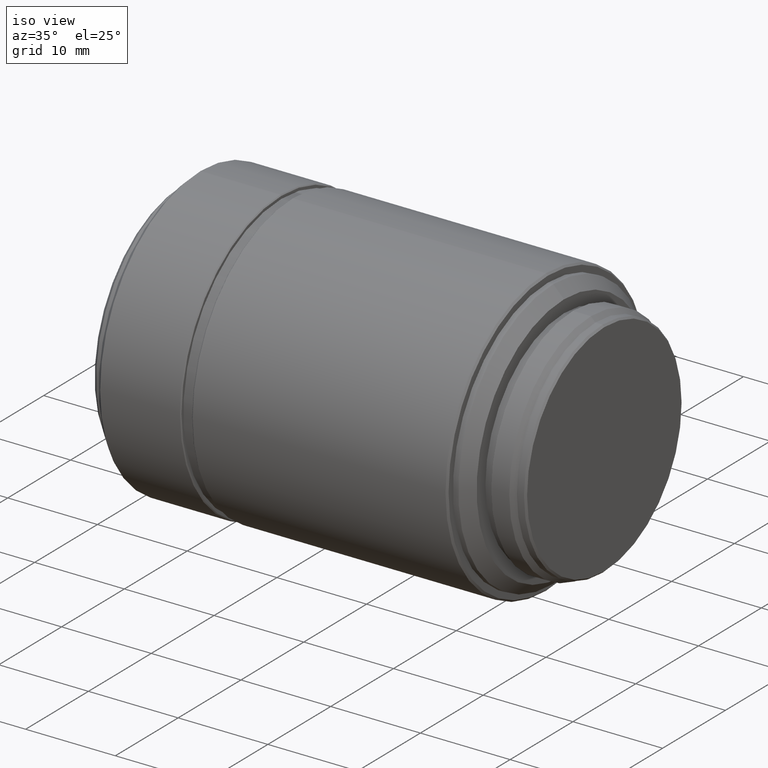
[diagram: clean part render]
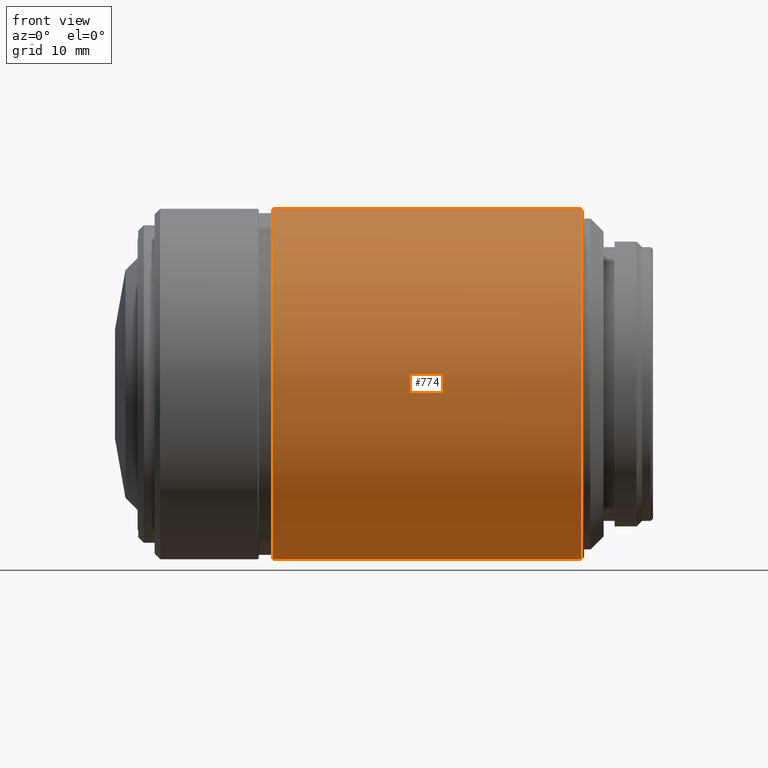
[diagram: tour spotlight — one face highlighted and labeled with its STEP entity id]
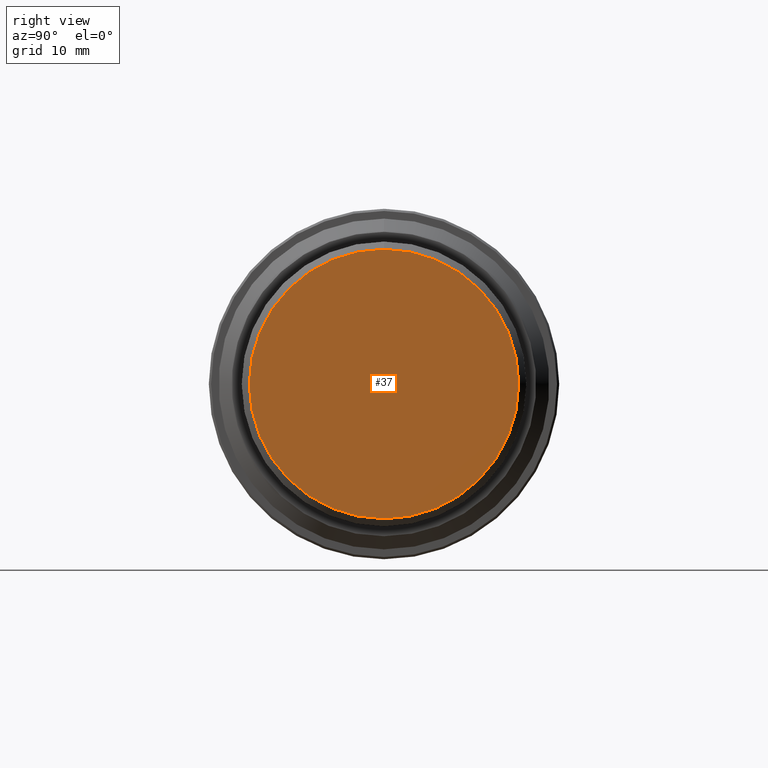
[diagram: tour spotlight — one face highlighted and labeled with its STEP entity id]
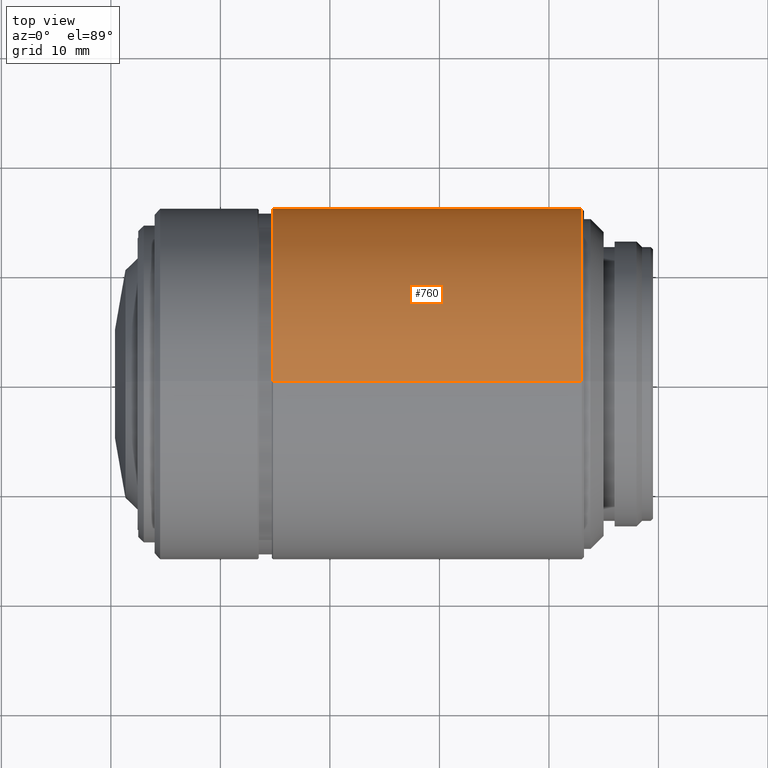
[diagram: tour spotlight — one face highlighted and labeled with its STEP entity id]
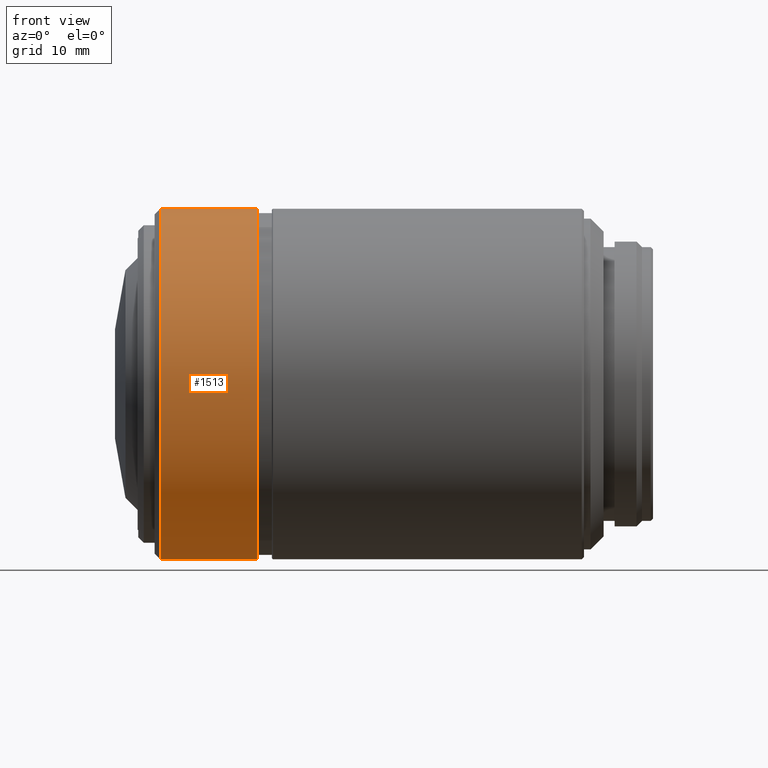
[diagram: tour spotlight — one face highlighted and labeled with its STEP entity id]
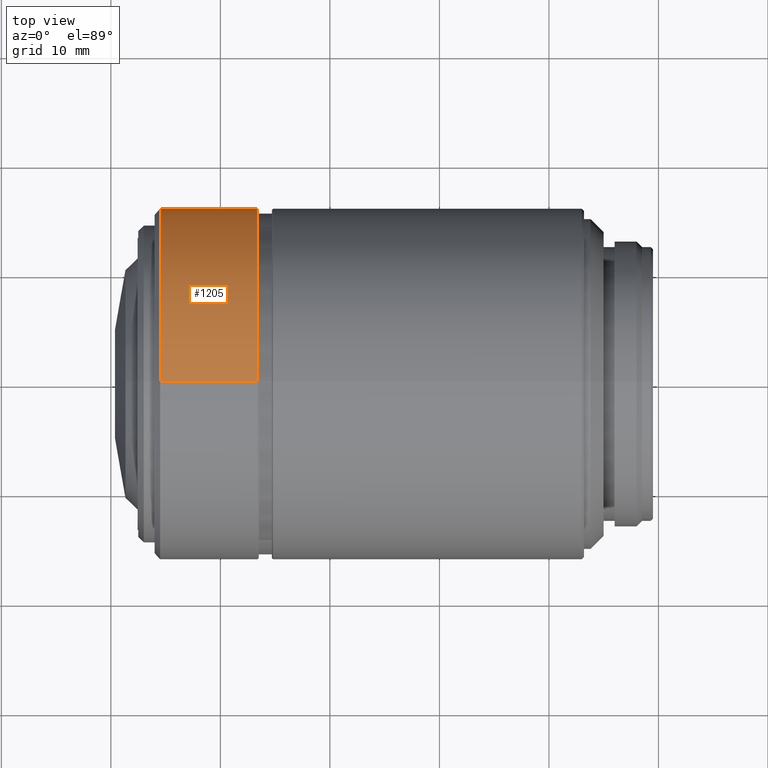
[diagram: tour spotlight — one face highlighted and labeled with its STEP entity id]
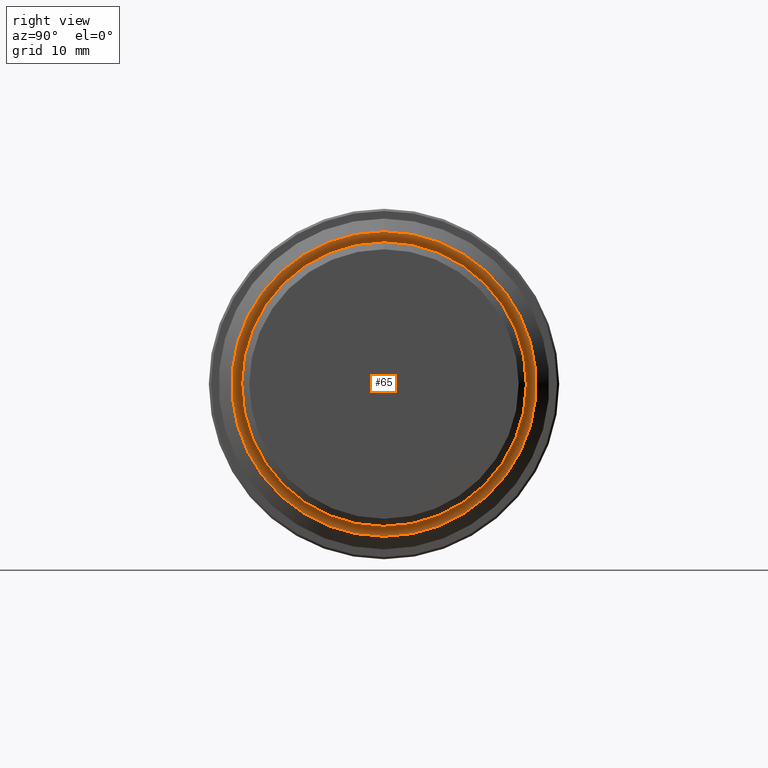
[diagram: tour spotlight — one face highlighted and labeled with its STEP entity id]
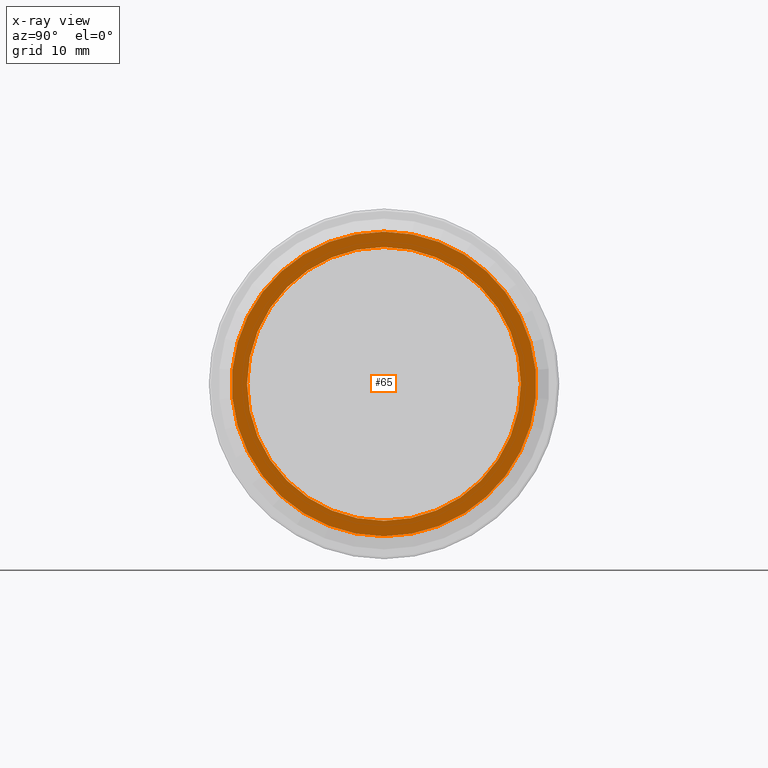
[diagram: x-ray of the same camera — body ghosted, this tour face saturated]
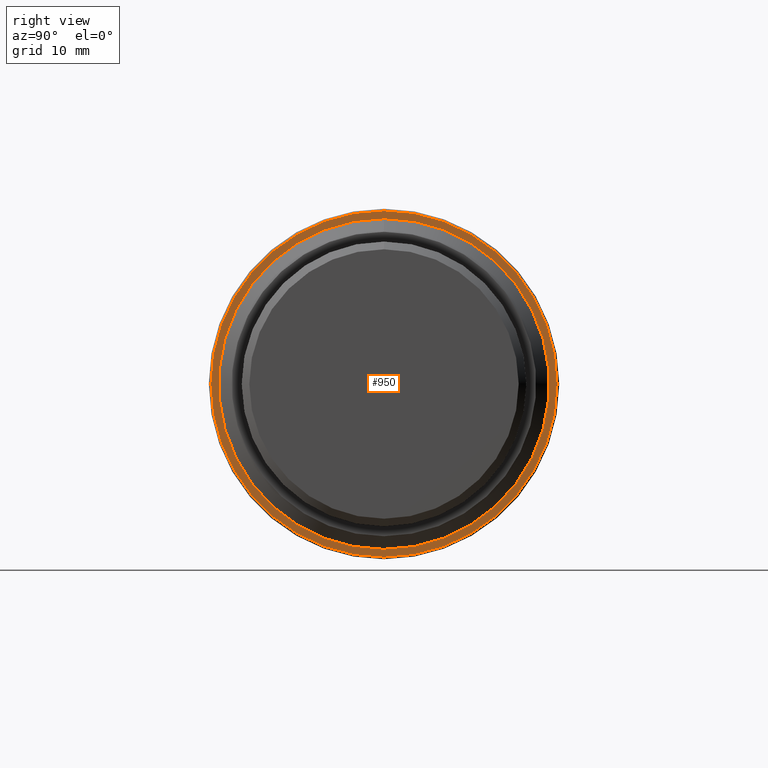
[diagram: tour spotlight — one face highlighted and labeled with its STEP entity id]
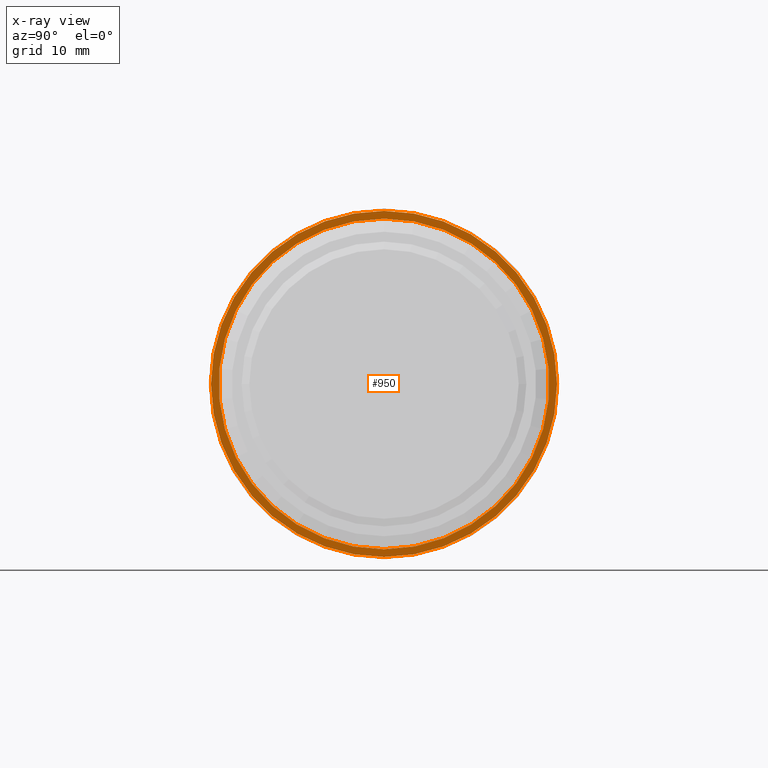
[diagram: x-ray of the same camera — body ghosted, this tour face saturated]
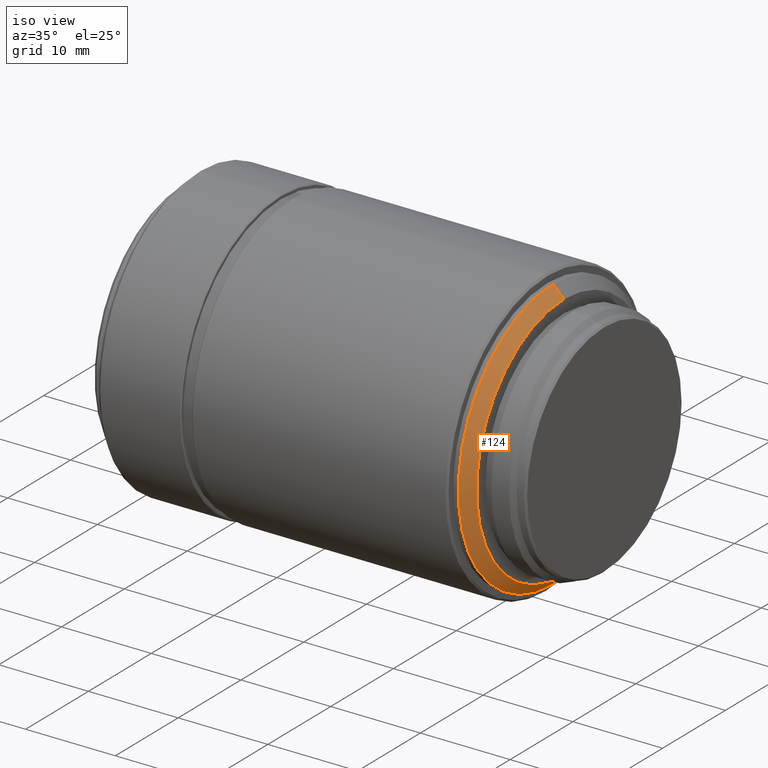
[diagram: tour spotlight — one face highlighted and labeled with its STEP entity id]
A machine part: a face-by-face anatomy tour. The part has 48 B-rep faces; the first image is the clean iso view, then the 8 largest visible faces are spotlighted one at a time (largest first), each with its STEP entity span.

Face 1 — front view, entity #774. In plain terms, the highlighted cylindrical surface (partial cylindrical patch) has radius 16 mm, axis along (1, 0, 0).
Definition (entity closure, byte-faithful):
#27 = CARTESIAN_POINT ( 'NONE',  ( 28.87349364412800057, 0.000000000000000000, 0.000000000000000000 ) ) ;
#83 = LINE ( 'NONE', #583, #866 ) ;
#102 = CARTESIAN_POINT ( 'NONE',  ( 42.97349364412800554, -16.00000000000000000, -1.959434878635769865E-15 ) ) ;
#168 = EDGE_CURVE ( 'NONE', #1277, #1453, #83, .T. ) ;
#226 = EDGE_LOOP ( 'NONE', ( #393, #570, #949, #1210 ) ) ;
#227 = EDGE_CURVE ( 'NONE', #1031, #1277, #814, .T. ) ;
#242 = CARTESIAN_POINT ( 'NONE',  ( 42.97349364412800554, 0.000000000000000000, 0.000000000000000000 ) ) ;
#355 = CIRCLE ( 'NONE', #1140, 16.00000000000000000 ) ;
#378 = CARTESIAN_POINT ( 'NONE',  ( 14.77349364412799915, 16.00000000000000000, -1.959434878635769865E-15 ) ) ;
#384 = DIRECTION ( 'NONE',  ( 0.000000000000000000, -1.000000000000000000, 0.000000000000000000 ) ) ;
#391 = DIRECTION ( 'NONE',  ( 1.000000000000000000, 0.000000000000000000, 0.000000000000000000 ) ) ;
#393 = ORIENTED_EDGE ( 'NONE', *, *, #518, .F. ) ;
#457 = DIRECTION ( 'NONE',  ( 1.000000000000000000, 0.000000000000000000, 0.000000000000000000 ) ) ;
#497 = DIRECTION ( 'NONE',  ( 1.000000000000000000, 0.000000000000000000, 0.000000000000000000 ) ) ;
#518 = EDGE_CURVE ( 'NONE', #992, #1453, #355, .T. ) ;
#570 = ORIENTED_EDGE ( 'NONE', *, *, #842, .F. ) ;
#583 = CARTESIAN_POINT ( 'NONE',  ( 28.87349364412800057, 16.00000000000000000, -1.959434878635769865E-15 ) ) ;
#608 = FACE_OUTER_BOUND ( 'NONE', #226, .T. ) ;
#664 = AXIS2_PLACEMENT_3D ( 'NONE', #27, #497, #384 ) ;
#774 = ADVANCED_FACE ( 'NONE', ( #608 ), #1106, .T. ) ;
#786 = DIRECTION ( 'NONE',  ( 0.000000000000000000, 1.000000000000000000, 0.000000000000000000 ) ) ;
#814 = CIRCLE ( 'NONE', #961, 16.00000000000000000 ) ;
#822 = DIRECTION ( 'NONE',  ( 0.000000000000000000, 1.000000000000000000, 0.000000000000000000 ) ) ;
#842 = EDGE_CURVE ( 'NONE', #1031, #992, #900, .T. ) ;
#866 = VECTOR ( 'NONE', #1066, 1000.000000000000000 ) ;
#900 = LINE ( 'NONE', #929, #1524 ) ;
#929 = CARTESIAN_POINT ( 'NONE',  ( 28.87349364412800057, -16.00000000000000000, 0.000000000000000000 ) ) ;
#949 = ORIENTED_EDGE ( 'NONE', *, *, #227, .T. ) ;
#961 = AXIS2_PLACEMENT_3D ( 'NONE', #1002, #391, #786 ) ;
#973 = CARTESIAN_POINT ( 'NONE',  ( 42.97349364412800554, 16.00000000000000000, 0.000000000000000000 ) ) ;
#992 = VERTEX_POINT ( 'NONE', #102 ) ;
#1002 = CARTESIAN_POINT ( 'NONE',  ( 14.77349364412799915, 0.000000000000000000, 0.000000000000000000 ) ) ;
#1031 = VERTEX_POINT ( 'NONE', #1083 ) ;
#1066 = DIRECTION ( 'NONE',  ( 1.000000000000000000, 0.000000000000000000, 0.000000000000000000 ) ) ;
#1083 = CARTESIAN_POINT ( 'NONE',  ( 14.77349364412799915, -16.00000000000000000, 0.000000000000000000 ) ) ;
#1106 = CYLINDRICAL_SURFACE ( 'NONE', #664, 16.00000000000000000 ) ;
#1140 = AXIS2_PLACEMENT_3D ( 'NONE', #242, #457, #822 ) ;
#1210 = ORIENTED_EDGE ( 'NONE', *, *, #168, .T. ) ;
#1277 = VERTEX_POINT ( 'NONE', #378 ) ;
#1384 = DIRECTION ( 'NONE',  ( 1.000000000000000000, 0.000000000000000000, 0.000000000000000000 ) ) ;
#1453 = VERTEX_POINT ( 'NONE', #973 ) ;
#1524 = VECTOR ( 'NONE', #1384, 1000.000000000000000 ) ;

Face 2 — right view, entity #37. In plain terms, the highlighted planar face has unit normal (1, 0, 0).
Definition (entity closure, byte-faithful):
#7 = ORIENTED_EDGE ( 'NONE', *, *, #1479, .T. ) ;
#33 = AXIS2_PLACEMENT_3D ( 'NONE', #390, #889, #625 ) ;
#37 = ADVANCED_FACE ( 'NONE', ( #811 ), #212, .T. ) ;
#54 = AXIS2_PLACEMENT_3D ( 'NONE', #698, #1177, #1315 ) ;
#212 = PLANE ( 'NONE',  #54 ) ;
#246 = ORIENTED_EDGE ( 'NONE', *, *, #1283, .T. ) ;
#365 = CARTESIAN_POINT ( 'NONE',  ( 49.47349364412799844, 12.30000000000000071, 0.000000000000000000 ) ) ;
#390 = CARTESIAN_POINT ( 'NONE',  ( 49.47349364412799844, 0.000000000000000000, 0.000000000000000000 ) ) ;
#598 = CARTESIAN_POINT ( 'NONE',  ( 49.47349364412799844, 0.000000000000000000, 0.000000000000000000 ) ) ;
#616 = DIRECTION ( 'NONE',  ( 0.000000000000000000, 1.000000000000000000, 0.000000000000000000 ) ) ;
#625 = DIRECTION ( 'NONE',  ( 0.000000000000000000, 1.000000000000000000, 0.000000000000000000 ) ) ;
#698 = CARTESIAN_POINT ( 'NONE',  ( 49.47349364412799844, 6.150000000000000355, 0.000000000000000000 ) ) ;
#717 = CIRCLE ( 'NONE', #33, 12.30000000000000071 ) ;
#724 = VERTEX_POINT ( 'NONE', #365 ) ;
#737 = DIRECTION ( 'NONE',  ( 1.000000000000000000, 0.000000000000000000, 0.000000000000000000 ) ) ;
#773 = VERTEX_POINT ( 'NONE', #867 ) ;
#811 = FACE_OUTER_BOUND ( 'NONE', #1163, .T. ) ;
#867 = CARTESIAN_POINT ( 'NONE',  ( 49.47349364412799844, -12.30000000000000071, -1.506315562951249935E-15 ) ) ;
#889 = DIRECTION ( 'NONE',  ( 1.000000000000000000, 0.000000000000000000, 0.000000000000000000 ) ) ;
#937 = AXIS2_PLACEMENT_3D ( 'NONE', #598, #737, #616 ) ;
#1114 = CIRCLE ( 'NONE', #937, 12.30000000000000071 ) ;
#1163 = EDGE_LOOP ( 'NONE', ( #7, #246 ) ) ;
#1177 = DIRECTION ( 'NONE',  ( 1.000000000000000000, 0.000000000000000000, 0.000000000000000000 ) ) ;
#1283 = EDGE_CURVE ( 'NONE', #724, #773, #717, .T. ) ;
#1315 = DIRECTION ( 'NONE',  ( 0.000000000000000000, 1.000000000000000000, 0.000000000000000000 ) ) ;
#1479 = EDGE_CURVE ( 'NONE', #773, #724, #1114, .T. ) ;

Face 3 — top view, entity #760. In plain terms, the highlighted cylindrical surface (partial cylindrical patch) has radius 16 mm, axis along (1, 0, 0).
Definition (entity closure, byte-faithful):
#83 = LINE ( 'NONE', #583, #866 ) ;
#94 = ORIENTED_EDGE ( 'NONE', *, *, #694, .T. ) ;
#102 = CARTESIAN_POINT ( 'NONE',  ( 42.97349364412800554, -16.00000000000000000, -1.959434878635769865E-15 ) ) ;
#168 = EDGE_CURVE ( 'NONE', #1277, #1453, #83, .T. ) ;
#315 = DIRECTION ( 'NONE',  ( 1.000000000000000000, 0.000000000000000000, 0.000000000000000000 ) ) ;
#375 = DIRECTION ( 'NONE',  ( 1.000000000000000000, 0.000000000000000000, 0.000000000000000000 ) ) ;
#376 = EDGE_LOOP ( 'NONE', ( #94, #517, #1097, #673 ) ) ;
#378 = CARTESIAN_POINT ( 'NONE',  ( 14.77349364412799915, 16.00000000000000000, -1.959434878635769865E-15 ) ) ;
#517 = ORIENTED_EDGE ( 'NONE', *, *, #842, .T. ) ;
#583 = CARTESIAN_POINT ( 'NONE',  ( 28.87349364412800057, 16.00000000000000000, -1.959434878635769865E-15 ) ) ;
#623 = DIRECTION ( 'NONE',  ( 0.000000000000000000, -1.000000000000000000, 0.000000000000000000 ) ) ;
#639 = DIRECTION ( 'NONE',  ( 0.000000000000000000, 1.000000000000000000, 0.000000000000000000 ) ) ;
#673 = ORIENTED_EDGE ( 'NONE', *, *, #168, .F. ) ;
#694 = EDGE_CURVE ( 'NONE', #1277, #1031, #1473, .T. ) ;
#732 = CARTESIAN_POINT ( 'NONE',  ( 28.87349364412800057, 0.000000000000000000, 0.000000000000000000 ) ) ;
#754 = CYLINDRICAL_SURFACE ( 'NONE', #849, 16.00000000000000000 ) ;
#760 = ADVANCED_FACE ( 'NONE', ( #1334 ), #754, .T. ) ;
#784 = CARTESIAN_POINT ( 'NONE',  ( 42.97349364412800554, 0.000000000000000000, 0.000000000000000000 ) ) ;
#802 = DIRECTION ( 'NONE',  ( 0.000000000000000000, 1.000000000000000000, 0.000000000000000000 ) ) ;
#842 = EDGE_CURVE ( 'NONE', #1031, #992, #900, .T. ) ;
#849 = AXIS2_PLACEMENT_3D ( 'NONE', #732, #375, #623 ) ;
#866 = VECTOR ( 'NONE', #1066, 1000.000000000000000 ) ;
#900 = LINE ( 'NONE', #929, #1524 ) ;
#929 = CARTESIAN_POINT ( 'NONE',  ( 28.87349364412800057, -16.00000000000000000, 0.000000000000000000 ) ) ;
#973 = CARTESIAN_POINT ( 'NONE',  ( 42.97349364412800554, 16.00000000000000000, 0.000000000000000000 ) ) ;
#986 = CARTESIAN_POINT ( 'NONE',  ( 14.77349364412799915, 0.000000000000000000, 0.000000000000000000 ) ) ;
#992 = VERTEX_POINT ( 'NONE', #102 ) ;
#1011 = AXIS2_PLACEMENT_3D ( 'NONE', #986, #1354, #639 ) ;
#1031 = VERTEX_POINT ( 'NONE', #1083 ) ;
#1066 = DIRECTION ( 'NONE',  ( 1.000000000000000000, 0.000000000000000000, 0.000000000000000000 ) ) ;
#1083 = CARTESIAN_POINT ( 'NONE',  ( 14.77349364412799915, -16.00000000000000000, 0.000000000000000000 ) ) ;
#1095 = CIRCLE ( 'NONE', #1343, 16.00000000000000000 ) ;
#1097 = ORIENTED_EDGE ( 'NONE', *, *, #1409, .F. ) ;
#1277 = VERTEX_POINT ( 'NONE', #378 ) ;
#1334 = FACE_OUTER_BOUND ( 'NONE', #376, .T. ) ;
#1343 = AXIS2_PLACEMENT_3D ( 'NONE', #784, #315, #802 ) ;
#1354 = DIRECTION ( 'NONE',  ( 1.000000000000000000, 0.000000000000000000, 0.000000000000000000 ) ) ;
#1384 = DIRECTION ( 'NONE',  ( 1.000000000000000000, 0.000000000000000000, 0.000000000000000000 ) ) ;
#1409 = EDGE_CURVE ( 'NONE', #1453, #992, #1095, .T. ) ;
#1453 = VERTEX_POINT ( 'NONE', #973 ) ;
#1473 = CIRCLE ( 'NONE', #1011, 16.00000000000000000 ) ;
#1524 = VECTOR ( 'NONE', #1384, 1000.000000000000000 ) ;

Face 4 — front view, entity #1513. In plain terms, the highlighted cylindrical surface (partial cylindrical patch) has radius 16 mm, axis along (1, 0, 0).
Definition (entity closure, byte-faithful):
#70 = CARTESIAN_POINT ( 'NONE',  ( 4.473493644127980673, -16.00000000000000000, 0.000000000000000000 ) ) ;
#79 = CARTESIAN_POINT ( 'NONE',  ( 4.473493644127980673, 0.000000000000000000, 0.000000000000000000 ) ) ;
#112 = DIRECTION ( 'NONE',  ( 1.000000000000000000, 0.000000000000000000, 0.000000000000000000 ) ) ;
#245 = DIRECTION ( 'NONE',  ( 1.000000000000000000, 0.000000000000000000, 0.000000000000000000 ) ) ;
#249 = VERTEX_POINT ( 'NONE', #1361 ) ;
#258 = EDGE_CURVE ( 'NONE', #357, #249, #646, .T. ) ;
#276 = DIRECTION ( 'NONE',  ( 1.000000000000000000, 0.000000000000000000, 0.000000000000000000 ) ) ;
#357 = VERTEX_POINT ( 'NONE', #70 ) ;
#359 = AXIS2_PLACEMENT_3D ( 'NONE', #1096, #276, #761 ) ;
#406 = AXIS2_PLACEMENT_3D ( 'NONE', #79, #1403, #668 ) ;
#480 = AXIS2_PLACEMENT_3D ( 'NONE', #491, #112, #582 ) ;
#491 = CARTESIAN_POINT ( 'NONE',  ( 8.923493644127979962, 0.000000000000000000, 0.000000000000000000 ) ) ;
#499 = ORIENTED_EDGE ( 'NONE', *, *, #258, .F. ) ;
#544 = DIRECTION ( 'NONE',  ( 1.000000000000000000, 0.000000000000000000, 0.000000000000000000 ) ) ;
#545 = VERTEX_POINT ( 'NONE', #1178 ) ;
#558 = CIRCLE ( 'NONE', #406, 16.00000000000000000 ) ;
#582 = DIRECTION ( 'NONE',  ( 0.000000000000000000, -1.000000000000000000, 0.000000000000000000 ) ) ;
#591 = FACE_OUTER_BOUND ( 'NONE', #618, .T. ) ;
#618 = EDGE_LOOP ( 'NONE', ( #824, #499, #1387, #813 ) ) ;
#646 = LINE ( 'NONE', #1129, #1391 ) ;
#668 = DIRECTION ( 'NONE',  ( 0.000000000000000000, 1.000000000000000000, 0.000000000000000000 ) ) ;
#761 = DIRECTION ( 'NONE',  ( 0.000000000000000000, 1.000000000000000000, 0.000000000000000000 ) ) ;
#813 = ORIENTED_EDGE ( 'NONE', *, *, #1063, .T. ) ;
#824 = ORIENTED_EDGE ( 'NONE', *, *, #825, .F. ) ;
#825 = EDGE_CURVE ( 'NONE', #249, #1239, #1552, .T. ) ;
#978 = CYLINDRICAL_SURFACE ( 'NONE', #480, 16.00000000000000000 ) ;
#1063 = EDGE_CURVE ( 'NONE', #545, #1239, #1209, .T. ) ;
#1091 = CARTESIAN_POINT ( 'NONE',  ( 8.923493644127979962, 16.00000000000000000, -1.959434878635769865E-15 ) ) ;
#1096 = CARTESIAN_POINT ( 'NONE',  ( 13.37349364412799879, 0.000000000000000000, 0.000000000000000000 ) ) ;
#1129 = CARTESIAN_POINT ( 'NONE',  ( 8.923493644127979962, -16.00000000000000000, 0.000000000000000000 ) ) ;
#1178 = CARTESIAN_POINT ( 'NONE',  ( 4.473493644127980673, 16.00000000000000000, -1.959434878635769865E-15 ) ) ;
#1209 = LINE ( 'NONE', #1091, #1498 ) ;
#1239 = VERTEX_POINT ( 'NONE', #1250 ) ;
#1250 = CARTESIAN_POINT ( 'NONE',  ( 13.37349364412799879, 16.00000000000000000, 0.000000000000000000 ) ) ;
#1350 = EDGE_CURVE ( 'NONE', #357, #545, #558, .T. ) ;
#1361 = CARTESIAN_POINT ( 'NONE',  ( 13.37349364412799879, -16.00000000000000000, -1.959434878635769865E-15 ) ) ;
#1387 = ORIENTED_EDGE ( 'NONE', *, *, #1350, .T. ) ;
#1391 = VECTOR ( 'NONE', #544, 1000.000000000000000 ) ;
#1403 = DIRECTION ( 'NONE',  ( 1.000000000000000000, 0.000000000000000000, 0.000000000000000000 ) ) ;
#1498 = VECTOR ( 'NONE', #245, 1000.000000000000000 ) ;
#1513 = ADVANCED_FACE ( 'NONE', ( #591 ), #978, .T. ) ;
#1552 = CIRCLE ( 'NONE', #359, 16.00000000000000000 ) ;

Face 5 — top view, entity #1205. In plain terms, the highlighted cylindrical surface (partial cylindrical patch) has radius 16 mm, axis along (1, 0, 0).
Definition (entity closure, byte-faithful):
#25 = DIRECTION ( 'NONE',  ( 0.000000000000000000, -1.000000000000000000, 0.000000000000000000 ) ) ;
#35 = CARTESIAN_POINT ( 'NONE',  ( 13.37349364412799879, 0.000000000000000000, 0.000000000000000000 ) ) ;
#70 = CARTESIAN_POINT ( 'NONE',  ( 4.473493644127980673, -16.00000000000000000, 0.000000000000000000 ) ) ;
#120 = DIRECTION ( 'NONE',  ( 0.000000000000000000, 1.000000000000000000, 0.000000000000000000 ) ) ;
#128 = CARTESIAN_POINT ( 'NONE',  ( 4.473493644127980673, 0.000000000000000000, 0.000000000000000000 ) ) ;
#135 = CIRCLE ( 'NONE', #1193, 16.00000000000000000 ) ;
#245 = DIRECTION ( 'NONE',  ( 1.000000000000000000, 0.000000000000000000, 0.000000000000000000 ) ) ;
#249 = VERTEX_POINT ( 'NONE', #1361 ) ;
#258 = EDGE_CURVE ( 'NONE', #357, #249, #646, .T. ) ;
#277 = ORIENTED_EDGE ( 'NONE', *, *, #258, .T. ) ;
#357 = VERTEX_POINT ( 'NONE', #70 ) ;
#411 = CARTESIAN_POINT ( 'NONE',  ( 8.923493644127979962, 0.000000000000000000, 0.000000000000000000 ) ) ;
#503 = FACE_OUTER_BOUND ( 'NONE', #1044, .T. ) ;
#529 = CYLINDRICAL_SURFACE ( 'NONE', #1041, 16.00000000000000000 ) ;
#544 = DIRECTION ( 'NONE',  ( 1.000000000000000000, 0.000000000000000000, 0.000000000000000000 ) ) ;
#545 = VERTEX_POINT ( 'NONE', #1178 ) ;
#646 = LINE ( 'NONE', #1129, #1391 ) ;
#679 = EDGE_CURVE ( 'NONE', #1239, #249, #821, .T. ) ;
#821 = CIRCLE ( 'NONE', #1040, 16.00000000000000000 ) ;
#1010 = DIRECTION ( 'NONE',  ( 1.000000000000000000, 0.000000000000000000, 0.000000000000000000 ) ) ;
#1020 = ORIENTED_EDGE ( 'NONE', *, *, #1463, .T. ) ;
#1040 = AXIS2_PLACEMENT_3D ( 'NONE', #35, #1103, #1243 ) ;
#1041 = AXIS2_PLACEMENT_3D ( 'NONE', #411, #1010, #25 ) ;
#1044 = EDGE_LOOP ( 'NONE', ( #1020, #277, #1381, #1335 ) ) ;
#1063 = EDGE_CURVE ( 'NONE', #545, #1239, #1209, .T. ) ;
#1091 = CARTESIAN_POINT ( 'NONE',  ( 8.923493644127979962, 16.00000000000000000, -1.959434878635769865E-15 ) ) ;
#1103 = DIRECTION ( 'NONE',  ( 1.000000000000000000, 0.000000000000000000, 0.000000000000000000 ) ) ;
#1129 = CARTESIAN_POINT ( 'NONE',  ( 8.923493644127979962, -16.00000000000000000, 0.000000000000000000 ) ) ;
#1178 = CARTESIAN_POINT ( 'NONE',  ( 4.473493644127980673, 16.00000000000000000, -1.959434878635769865E-15 ) ) ;
#1193 = AXIS2_PLACEMENT_3D ( 'NONE', #128, #1332, #120 ) ;
#1205 = ADVANCED_FACE ( 'NONE', ( #503 ), #529, .T. ) ;
#1209 = LINE ( 'NONE', #1091, #1498 ) ;
#1239 = VERTEX_POINT ( 'NONE', #1250 ) ;
#1243 = DIRECTION ( 'NONE',  ( 0.000000000000000000, 1.000000000000000000, 0.000000000000000000 ) ) ;
#1250 = CARTESIAN_POINT ( 'NONE',  ( 13.37349364412799879, 16.00000000000000000, 0.000000000000000000 ) ) ;
#1332 = DIRECTION ( 'NONE',  ( 1.000000000000000000, 0.000000000000000000, 0.000000000000000000 ) ) ;
#1335 = ORIENTED_EDGE ( 'NONE', *, *, #1063, .F. ) ;
#1361 = CARTESIAN_POINT ( 'NONE',  ( 13.37349364412799879, -16.00000000000000000, -1.959434878635769865E-15 ) ) ;
#1381 = ORIENTED_EDGE ( 'NONE', *, *, #679, .F. ) ;
#1391 = VECTOR ( 'NONE', #544, 1000.000000000000000 ) ;
#1463 = EDGE_CURVE ( 'NONE', #545, #357, #135, .T. ) ;
#1498 = VECTOR ( 'NONE', #245, 1000.000000000000000 ) ;

Face 6 — right view, entity #65. An x-ray twin of the same camera follows (body ghosted, this face saturated) — the face is partly hidden behind the body. In plain terms, the highlighted planar face has unit normal (1, 0, 0).
Definition (entity closure, byte-faithful):
#65 = ADVANCED_FACE ( 'NONE', ( #947, #1198 ), #340, .T. ) ;
#104 = CARTESIAN_POINT ( 'NONE',  ( 44.97349364412799844, 13.19999999999999929, 0.000000000000000000 ) ) ;
#119 = ORIENTED_EDGE ( 'NONE', *, *, #1124, .F. ) ;
#232 = VERTEX_POINT ( 'NONE', #771 ) ;
#287 = AXIS2_PLACEMENT_3D ( 'NONE', #1176, #1017, #1502 ) ;
#292 = CARTESIAN_POINT ( 'NONE',  ( 44.97349364412799844, 0.000000000000000000, 0.000000000000000000 ) ) ;
#295 = CARTESIAN_POINT ( 'NONE',  ( 44.97349364412799844, 0.000000000000000000, 0.000000000000000000 ) ) ;
#306 = CIRCLE ( 'NONE', #934, 13.89999999999999858 ) ;
#340 = PLANE ( 'NONE',  #660 ) ;
#342 = EDGE_CURVE ( 'NONE', #1261, #232, #306, .T. ) ;
#394 = ORIENTED_EDGE ( 'NONE', *, *, #342, .T. ) ;
#444 = EDGE_LOOP ( 'NONE', ( #1537, #394 ) ) ;
#494 = CARTESIAN_POINT ( 'NONE',  ( 44.97349364412799844, 13.89999999999999858, 0.000000000000000000 ) ) ;
#609 = VERTEX_POINT ( 'NONE', #1199 ) ;
#610 = AXIS2_PLACEMENT_3D ( 'NONE', #292, #1257, #1408 ) ;
#651 = ORIENTED_EDGE ( 'NONE', *, *, #876, .F. ) ;
#660 = AXIS2_PLACEMENT_3D ( 'NONE', #104, #1410, #1434 ) ;
#758 = DIRECTION ( 'NONE',  ( 1.000000000000000000, 0.000000000000000000, 0.000000000000000000 ) ) ;
#771 = CARTESIAN_POINT ( 'NONE',  ( 44.97349364412799844, -13.89999999999999858, -1.702259050814819900E-15 ) ) ;
#818 = AXIS2_PLACEMENT_3D ( 'NONE', #1120, #758, #1481 ) ;
#876 = EDGE_CURVE ( 'NONE', #609, #911, #1526, .T. ) ;
#893 = EDGE_CURVE ( 'NONE', #232, #1261, #1299, .T. ) ;
#911 = VERTEX_POINT ( 'NONE', #1492 ) ;
#934 = AXIS2_PLACEMENT_3D ( 'NONE', #295, #1151, #1033 ) ;
#947 = FACE_OUTER_BOUND ( 'NONE', #444, .T. ) ;
#1017 = DIRECTION ( 'NONE',  ( 1.000000000000000000, 0.000000000000000000, 0.000000000000000000 ) ) ;
#1033 = DIRECTION ( 'NONE',  ( 0.000000000000000000, 1.000000000000000000, 0.000000000000000000 ) ) ;
#1087 = EDGE_LOOP ( 'NONE', ( #651, #119 ) ) ;
#1120 = CARTESIAN_POINT ( 'NONE',  ( 44.97349364412799844, 0.000000000000000000, 0.000000000000000000 ) ) ;
#1124 = EDGE_CURVE ( 'NONE', #911, #609, #1349, .T. ) ;
#1151 = DIRECTION ( 'NONE',  ( 1.000000000000000000, 0.000000000000000000, 0.000000000000000000 ) ) ;
#1176 = CARTESIAN_POINT ( 'NONE',  ( 44.97349364412799844, 0.000000000000000000, 0.000000000000000000 ) ) ;
#1198 = FACE_BOUND ( 'NONE', #1087, .T. ) ;
#1199 = CARTESIAN_POINT ( 'NONE',  ( 44.97349364412799844, -12.50000000000000000, 0.000000000000000000 ) ) ;
#1257 = DIRECTION ( 'NONE',  ( 1.000000000000000000, 0.000000000000000000, 0.000000000000000000 ) ) ;
#1261 = VERTEX_POINT ( 'NONE', #494 ) ;
#1299 = CIRCLE ( 'NONE', #287, 13.89999999999999858 ) ;
#1349 = CIRCLE ( 'NONE', #818, 12.50000000000000000 ) ;
#1408 = DIRECTION ( 'NONE',  ( 0.000000000000000000, 1.000000000000000000, 0.000000000000000000 ) ) ;
#1410 = DIRECTION ( 'NONE',  ( 1.000000000000000000, 0.000000000000000000, 0.000000000000000000 ) ) ;
#1434 = DIRECTION ( 'NONE',  ( 0.000000000000000000, 1.000000000000000000, 0.000000000000000000 ) ) ;
#1481 = DIRECTION ( 'NONE',  ( 0.000000000000000000, 1.000000000000000000, 0.000000000000000000 ) ) ;
#1492 = CARTESIAN_POINT ( 'NONE',  ( 44.97349364412799844, 12.50000000000000000, -1.530808498934190141E-15 ) ) ;
#1502 = DIRECTION ( 'NONE',  ( 0.000000000000000000, 1.000000000000000000, 0.000000000000000000 ) ) ;
#1526 = CIRCLE ( 'NONE', #610, 12.50000000000000000 ) ;
#1537 = ORIENTED_EDGE ( 'NONE', *, *, #893, .T. ) ;

Face 7 — right view, entity #950. An x-ray twin of the same camera follows (body ghosted, this face saturated) — the face is partly hidden behind the body. In plain terms, the highlighted planar face has unit normal (1, 0, 0).
Definition (entity closure, byte-faithful):
#42 = DIRECTION ( 'NONE',  ( 1.000000000000000000, 0.000000000000000000, 0.000000000000000000 ) ) ;
#52 = VERTEX_POINT ( 'NONE', #1543 ) ;
#56 = DIRECTION ( 'NONE',  ( 1.000000000000000000, 0.000000000000000000, 0.000000000000000000 ) ) ;
#69 = VERTEX_POINT ( 'NONE', #716 ) ;
#100 = EDGE_LOOP ( 'NONE', ( #750, #1346 ) ) ;
#129 = DIRECTION ( 'NONE',  ( 0.000000000000000000, 1.000000000000000000, 0.000000000000000000 ) ) ;
#176 = DIRECTION ( 'NONE',  ( 0.000000000000000000, 1.000000000000000000, 0.000000000000000000 ) ) ;
#201 = DIRECTION ( 'NONE',  ( 0.000000000000000000, 1.000000000000000000, 0.000000000000000000 ) ) ;
#217 = FACE_BOUND ( 'NONE', #879, .T. ) ;
#235 = AXIS2_PLACEMENT_3D ( 'NONE', #1112, #1229, #129 ) ;
#239 = AXIS2_PLACEMENT_3D ( 'NONE', #704, #42, #201 ) ;
#294 = EDGE_CURVE ( 'NONE', #52, #1373, #1188, .T. ) ;
#330 = AXIS2_PLACEMENT_3D ( 'NONE', #1270, #1132, #176 ) ;
#341 = DIRECTION ( 'NONE',  ( 1.000000000000000000, 0.000000000000000000, 0.000000000000000000 ) ) ;
#388 = EDGE_CURVE ( 'NONE', #69, #868, #630, .T. ) ;
#414 = PLANE ( 'NONE',  #239 ) ;
#419 = CARTESIAN_POINT ( 'NONE',  ( 43.17349364412800128, -15.10000000000000142, 0.000000000000000000 ) ) ;
#535 = DIRECTION ( 'NONE',  ( 0.000000000000000000, 1.000000000000000000, 0.000000000000000000 ) ) ;
#576 = CARTESIAN_POINT ( 'NONE',  ( 43.17349364412800128, 0.000000000000000000, 0.000000000000000000 ) ) ;
#585 = DIRECTION ( 'NONE',  ( 0.000000000000000000, 1.000000000000000000, 0.000000000000000000 ) ) ;
#612 = CIRCLE ( 'NONE', #235, 15.80000000000000071 ) ;
#621 = EDGE_CURVE ( 'NONE', #1373, #52, #764, .T. ) ;
#630 = CIRCLE ( 'NONE', #330, 15.80000000000000071 ) ;
#704 = CARTESIAN_POINT ( 'NONE',  ( 43.17349364412800128, 15.45000000000000107, 0.000000000000000000 ) ) ;
#714 = AXIS2_PLACEMENT_3D ( 'NONE', #1121, #56, #535 ) ;
#716 = CARTESIAN_POINT ( 'NONE',  ( 43.17349364412800128, 15.80000000000000071, 0.000000000000000000 ) ) ;
#734 = EDGE_CURVE ( 'NONE', #868, #69, #612, .T. ) ;
#750 = ORIENTED_EDGE ( 'NONE', *, *, #388, .T. ) ;
#764 = CIRCLE ( 'NONE', #1242, 15.10000000000000142 ) ;
#868 = VERTEX_POINT ( 'NONE', #1169 ) ;
#879 = EDGE_LOOP ( 'NONE', ( #1436, #1255 ) ) ;
#950 = ADVANCED_FACE ( 'NONE', ( #1138, #217 ), #414, .T. ) ;
#1112 = CARTESIAN_POINT ( 'NONE',  ( 43.17349364412800128, 0.000000000000000000, 0.000000000000000000 ) ) ;
#1121 = CARTESIAN_POINT ( 'NONE',  ( 43.17349364412800128, 0.000000000000000000, 0.000000000000000000 ) ) ;
#1132 = DIRECTION ( 'NONE',  ( 1.000000000000000000, 0.000000000000000000, 0.000000000000000000 ) ) ;
#1138 = FACE_OUTER_BOUND ( 'NONE', #100, .T. ) ;
#1169 = CARTESIAN_POINT ( 'NONE',  ( 43.17349364412800128, -15.80000000000000071, -1.934941942652819995E-15 ) ) ;
#1188 = CIRCLE ( 'NONE', #714, 15.10000000000000142 ) ;
#1229 = DIRECTION ( 'NONE',  ( 1.000000000000000000, 0.000000000000000000, 0.000000000000000000 ) ) ;
#1242 = AXIS2_PLACEMENT_3D ( 'NONE', #576, #341, #585 ) ;
#1255 = ORIENTED_EDGE ( 'NONE', *, *, #621, .F. ) ;
#1270 = CARTESIAN_POINT ( 'NONE',  ( 43.17349364412800128, 0.000000000000000000, 0.000000000000000000 ) ) ;
#1346 = ORIENTED_EDGE ( 'NONE', *, *, #734, .T. ) ;
#1373 = VERTEX_POINT ( 'NONE', #419 ) ;
#1436 = ORIENTED_EDGE ( 'NONE', *, *, #294, .F. ) ;
#1543 = CARTESIAN_POINT ( 'NONE',  ( 43.17349364412800128, 15.10000000000000142, -1.849216666712500185E-15 ) ) ;

Face 8 — iso view, entity #124. In plain terms, the highlighted conical surface has half-angle 45 deg.
Definition (entity closure, byte-faithful):
#71 = VERTEX_POINT ( 'NONE', #331 ) ;
#124 = ADVANCED_FACE ( 'NONE', ( #1419 ), #1217, .T. ) ;
#163 = LINE ( 'NONE', #990, #1414 ) ;
#232 = VERTEX_POINT ( 'NONE', #771 ) ;
#278 = EDGE_LOOP ( 'NONE', ( #629, #1247, #472, #293 ) ) ;
#287 = AXIS2_PLACEMENT_3D ( 'NONE', #1176, #1017, #1502 ) ;
#288 = LINE ( 'NONE', #435, #791 ) ;
#293 = ORIENTED_EDGE ( 'NONE', *, *, #1253, .T. ) ;
#303 = DIRECTION ( 'NONE',  ( -0.7071067811865480168, 0.7071067811865470176, 0.000000000000000000 ) ) ;
#331 = CARTESIAN_POINT ( 'NONE',  ( 43.77349364412799559, -15.10000000000000142, -1.849216666712500185E-15 ) ) ;
#332 = EDGE_CURVE ( 'NONE', #71, #1230, #1036, .T. ) ;
#386 = EDGE_CURVE ( 'NONE', #1261, #1230, #288, .T. ) ;
#435 = CARTESIAN_POINT ( 'NONE',  ( 43.77349364412799559, 15.10000000000000142, 0.000000000000000000 ) ) ;
#443 = CARTESIAN_POINT ( 'NONE',  ( 43.77349364412799559, 0.000000000000000000, 0.000000000000000000 ) ) ;
#472 = ORIENTED_EDGE ( 'NONE', *, *, #893, .F. ) ;
#494 = CARTESIAN_POINT ( 'NONE',  ( 44.97349364412799844, 13.89999999999999858, 0.000000000000000000 ) ) ;
#520 = DIRECTION ( 'NONE',  ( -0.7071067811865480168, -0.7071067811865470176, -8.659560562354929160E-17 ) ) ;
#552 = DIRECTION ( 'NONE',  ( 1.000000000000000000, 0.000000000000000000, 0.000000000000000000 ) ) ;
#629 = ORIENTED_EDGE ( 'NONE', *, *, #332, .T. ) ;
#738 = AXIS2_PLACEMENT_3D ( 'NONE', #1426, #828, #1049 ) ;
#771 = CARTESIAN_POINT ( 'NONE',  ( 44.97349364412799844, -13.89999999999999858, -1.702259050814819900E-15 ) ) ;
#791 = VECTOR ( 'NONE', #303, 1000.000000000000000 ) ;
#828 = DIRECTION ( 'NONE',  ( -1.000000000000000000, 0.000000000000000000, 0.000000000000000000 ) ) ;
#893 = EDGE_CURVE ( 'NONE', #232, #1261, #1299, .T. ) ;
#903 = DIRECTION ( 'NONE',  ( 0.000000000000000000, 1.000000000000000000, 0.000000000000000000 ) ) ;
#985 = AXIS2_PLACEMENT_3D ( 'NONE', #443, #552, #903 ) ;
#990 = CARTESIAN_POINT ( 'NONE',  ( 43.77349364412799559, -15.10000000000000142, -1.849216666712500185E-15 ) ) ;
#1017 = DIRECTION ( 'NONE',  ( 1.000000000000000000, 0.000000000000000000, 0.000000000000000000 ) ) ;
#1036 = CIRCLE ( 'NONE', #985, 15.10000000000000142 ) ;
#1049 = DIRECTION ( 'NONE',  ( 0.000000000000000000, 1.000000000000000000, 0.000000000000000000 ) ) ;
#1176 = CARTESIAN_POINT ( 'NONE',  ( 44.97349364412799844, 0.000000000000000000, 0.000000000000000000 ) ) ;
#1217 = CONICAL_SURFACE ( 'NONE', #738, 15.10000000000000142, 0.7853981633974476129 ) ;
#1226 = CARTESIAN_POINT ( 'NONE',  ( 43.77349364412799559, 15.10000000000000142, 0.000000000000000000 ) ) ;
#1230 = VERTEX_POINT ( 'NONE', #1226 ) ;
#1247 = ORIENTED_EDGE ( 'NONE', *, *, #386, .F. ) ;
#1253 = EDGE_CURVE ( 'NONE', #232, #71, #163, .T. ) ;
#1261 = VERTEX_POINT ( 'NONE', #494 ) ;
#1299 = CIRCLE ( 'NONE', #287, 13.89999999999999858 ) ;
#1414 = VECTOR ( 'NONE', #520, 1000.000000000000000 ) ;
#1419 = FACE_OUTER_BOUND ( 'NONE', #278, .T. ) ;
#1426 = CARTESIAN_POINT ( 'NONE',  ( 43.77349364412799559, 0.000000000000000000, 0.000000000000000000 ) ) ;
#1502 = DIRECTION ( 'NONE',  ( 0.000000000000000000, 1.000000000000000000, 0.000000000000000000 ) ) ;